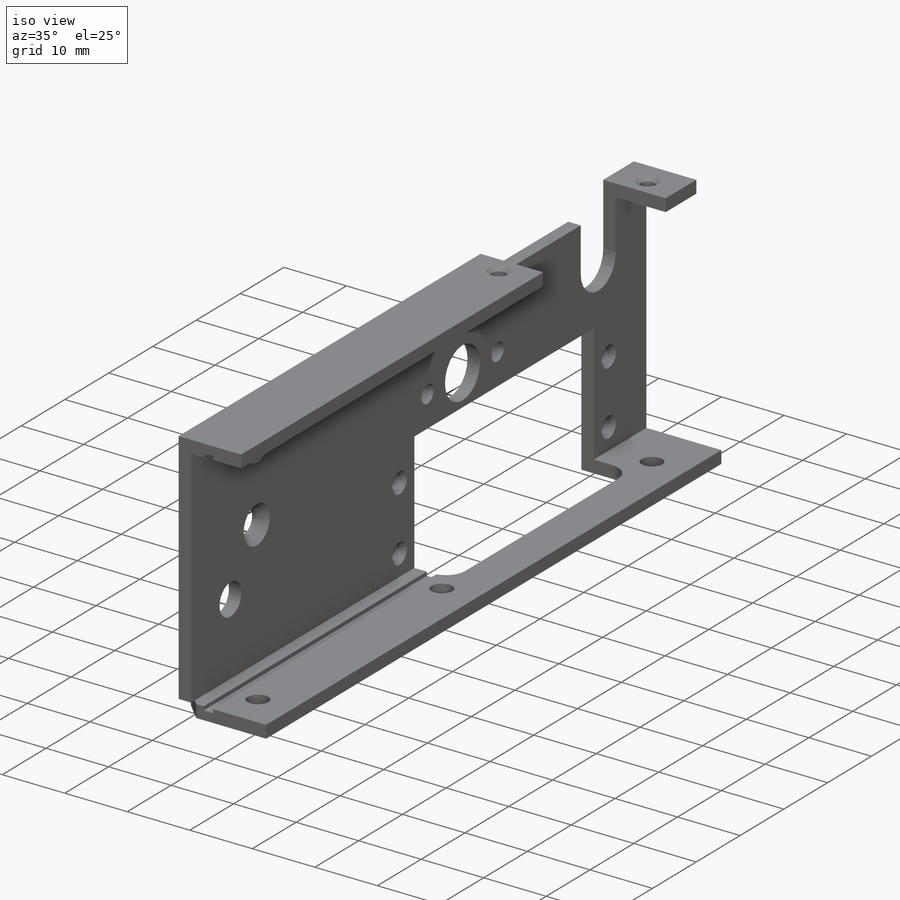
[diagram: iso view]
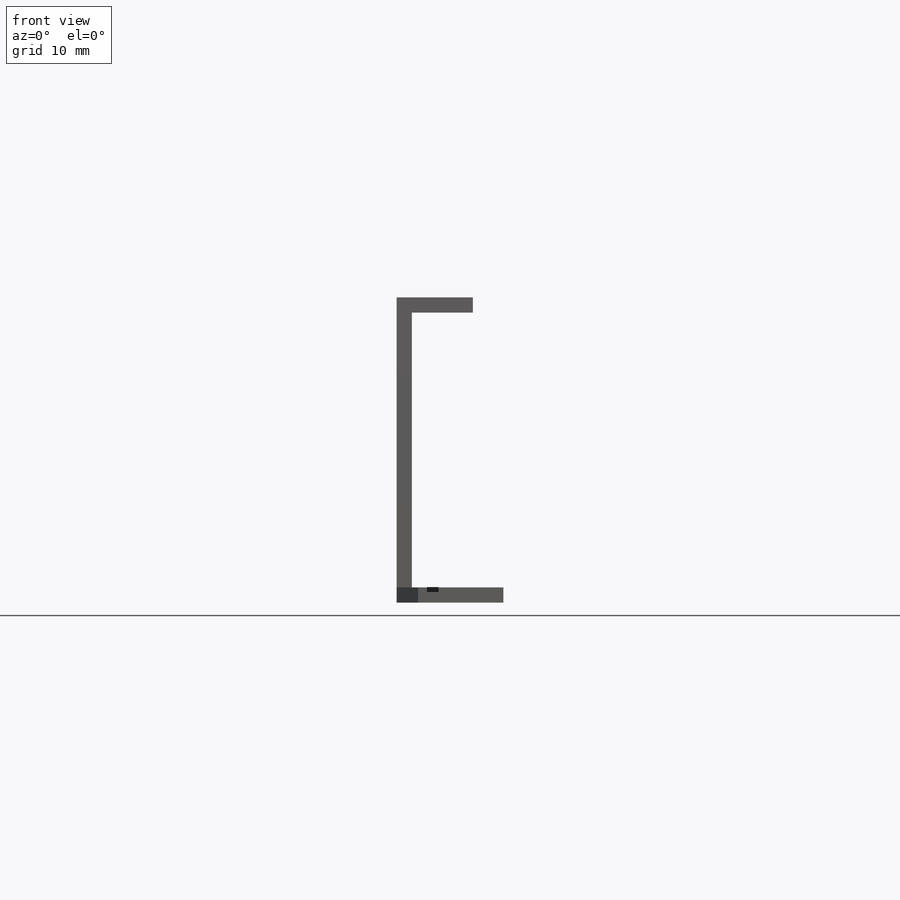
[diagram: front view]
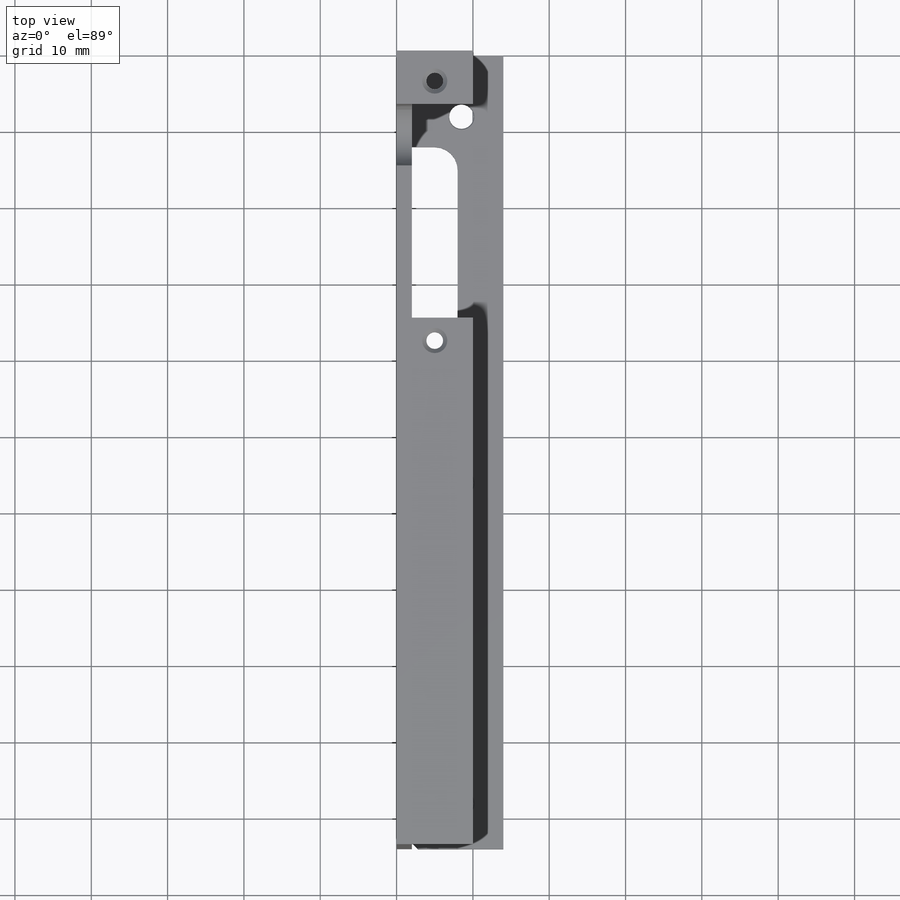
[diagram: top view]
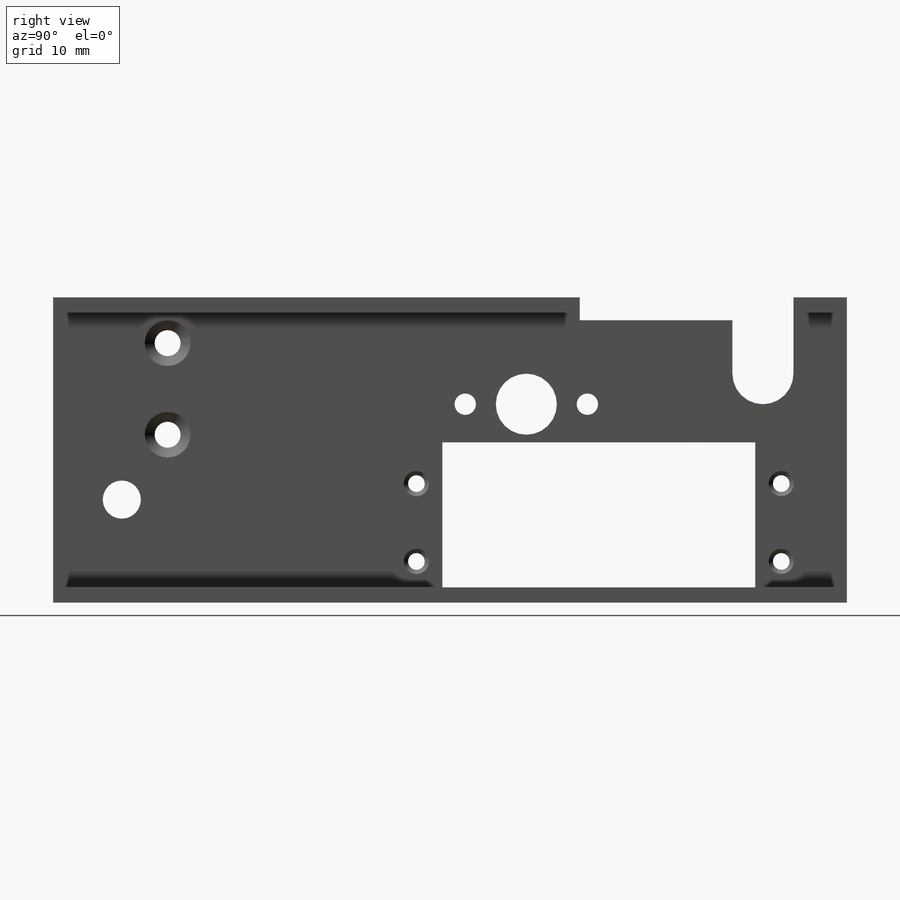
[diagram: right view]
SOLIDWORKS PART (.sldprt)
format: sldprt  version: not decoded by parser v0  size: 637,952 bytes
history: native  units: mm
features: sketch x19, cut_extrude x10, hole x4, material x1, extrude x1 (+14 scaffold rows collapsed)
feature tree (49):
  scaffold x14  (default folders/planes/origin — collapsed)
  material  "6063-T1"
  sketch  "Эскиз1"  dims[c1.D2=30.0mm c1.D3=20.0mm c2.D2=10.0mm c2.D4=2.0mm c2.D5=40.0mm c2.D1=2.0mm]
  extrude  "Бобышка-Вытянуть1"  Depth=104mm
  sketch  "Эскиз2"  dims[D1=3.0mm D2=8.0mm D3=41.0mm D4=14.0mm D5=12.0mm]
  cut_extrude  "Вырез-Вытянуть1"  Depth=21mm
  hole  "4_отв_4-40"  [1 undecoded]
  sketch  "Эскиз4"  dims[D1=47.8mm D2=10.2mm D3=23.9mm D4=5.1mm D5=96.0mm D6=26.0mm]
  sketch  "Эскиз3"  dims[hole-wizard template sketch: 46 standard entries collapsed; hole parameters kept: c15.Диаметр резьбы=2.1844mm c15.Глубина проходного сверла=2.0mm c15.Диаметр передней зенковки=3.302mm c15.D4=~3.666174mm c15.Угол передней зенковки=90.0deg c15.Диаметр задней зенковки=3.302mm c15.D6=~9.919017mm c15.Угол задней зенковки=90.0deg]
  sketch  "Эскиз5"  dims[D3=3.0mm D6=3.0mm D1=36.0mm D2=28.0mm D4=8.0mm D5=4.0mm D7=9.0mm]
  cut_extrude  "Вырез-Вытянуть2"  [1 undecoded]
  sketch  "Эскиз6"  dims[c1.D1=2.5mm c1.D2=2.5mm c2.D2=~0.180768deg c3.D2=28.0mm c3.D3=15.0mm c3.D4=5.0mm]
  cut_extrude  "Вырез-Вытянуть3"  Depth=3mm
  sketch  "Эскиз7"  dims[D1=3.0mm D2=5.0mm D3=99.0mm D4=26.5mm]
  cut_extrude  "Вырез-Вытянуть4"  [1 undecoded]
  hole  "Отверстие с зазором M31"  [1 undecoded]
  sketch  "Эскиз9"  dims[c1.D1=6.0mm c1.D2=8.5mm c1.D3=48.0mm c1.D4=42.0mm c2.D1=4.0mm]
  sketch  "Эскиз8"  dims[hole-wizard template sketch: 47 standard entries collapsed; hole parameters kept: c15.Глубина сквозного отверстия=2.0mm c15.Диаметр передней зенковки=3.45mm c15.D4=~3.666174mm c15.Угол передней зенковки=90.0deg c15.Диаметр задней зенковки=3.45mm c15.D6=~9.919017mm c15.Угол задней зенковки=90.0deg]
  sketch  "Эскиз10"  dims[D1=1.6mm D2=24.0mm D3=2.0mm]
  cut_extrude  "Вырез-Вытянуть5"  [1 undecoded]
  hole  "2_отв_4-40"  [1 undecoded]
  sketch  "Эскиз12"  dims[c1.D1=5.0mm c1.D2=5.8mm c1.D3=34.0mm c2.D2=3.0mm c2.D4=2.8mm]
  sketch  "Эскиз11"  dims[hole-wizard template sketch: 46 standard entries collapsed; hole parameters kept: c15.Диаметр резьбы=2.1844mm c15.Глубина проходного сверла=2.0mm c15.Диаметр передней зенковки=3.302mm c15.D4=~3.666174mm c15.Угол передней зенковки=90.0deg c15.Диаметр задней зенковки=3.302mm c15.D6=~9.919017mm c15.Угол задней зенковки=90.0deg]
  sketch  "Эскиз13"  dims[c1.D1=1.0mm c1.D2=0.6mm c1.D3=1.5mm c1.D4=3.2mm c2.D4=90.0deg c3.D4=2.0mm c3.D1=37.2mm]
  cut_extrude  "Вырез-Вытянуть6"  Depth=54mm
  sketch  "Эскиз14"  dims[c1.D1=1.8mm c1.D2=11.0mm c1.D3=5.0mm c2.D2=23.0mm]
  cut_extrude  "Вырез-Вытянуть7"  [1 undecoded]
  hole  "М3 потай"  [1 undecoded]
  sketch  "Эскиз16"  dims[D1=15.0mm D2=22.0mm D3=34.0mm D4=1.0mm D5=7.0mm D6=30.0mm D7=5.0mm]
  sketch  "Эскиз15"  dims[hole-wizard template sketch: 47 standard entries collapsed; hole parameters kept: c15.Глубина сквозного отверстия=2.0mm c15.Диаметр передней зенковки=6.0mm c15.D4=~3.666174mm c15.Угол передней зенковки=90.0deg c15.Диаметр задней зенковки=3.6mm c15.D6=~9.919017mm c15.Угол задней зенковки=90.0deg]
  sketch  "Эскиз17"  dims[c1.D1=~2.507868mm c2.D1=45.0deg c2.D2=2.0mm]
  cut_extrude  "Вырез-Вытянуть8"  Depth=2mm
  sketch  "Эскиз18"  dims[c1.D4=~7.649576mm c1.D6=8.0mm c1.D7=2.8mm c1.D8=2.8mm c1.D9=8.0mm c1.D1=8.0mm c1.D2=1.0mm c1.D3=11.0mm c2.D4=42.0mm c2.D5=14.0mm c2.D8=16.0mm c2.D9=8.0mm c2.D2=7.0mm c2.D3=10.0mm]
  cut_extrude  "Вырез-Вытянуть9"  [1 undecoded]
  sketch  "Эскиз19"  dims[c1.D1=5.0mm c1.D3=5.0mm c1.D2=9.0mm c2.D3=13.5mm]
  cut_extrude  "Вырез-Вытянуть10"  [1 undecoded]
decode coverage: 24 of 34 modeling features carry decoded parameters
note: ~ marks probable driven/reference dimensions
note: 10 parameter values undecoded
summary: no parameter record found for 10 features
note: suppression state not decoded; provenance and decode notes live in map.json
